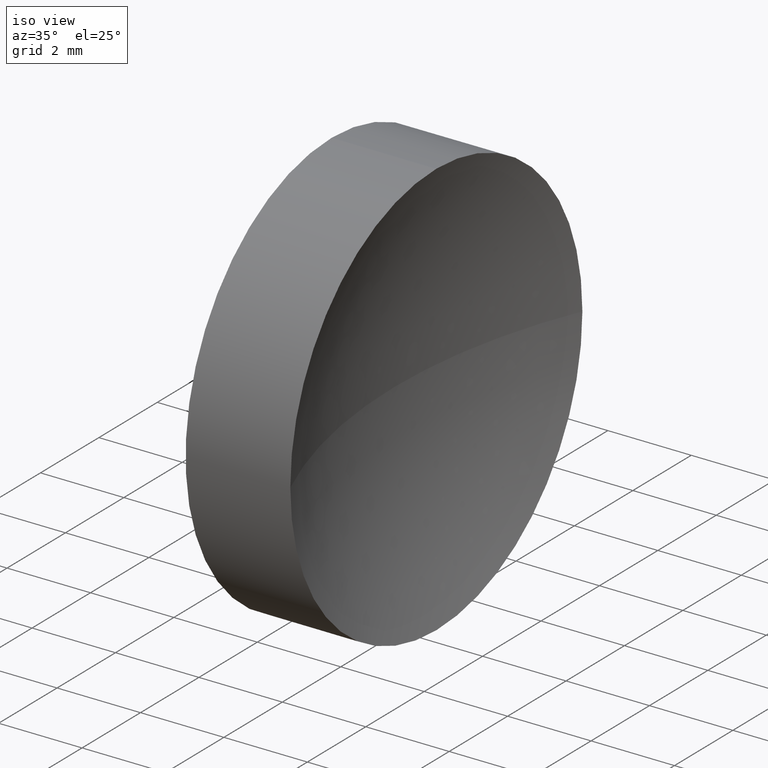
[diagram: clean part render]
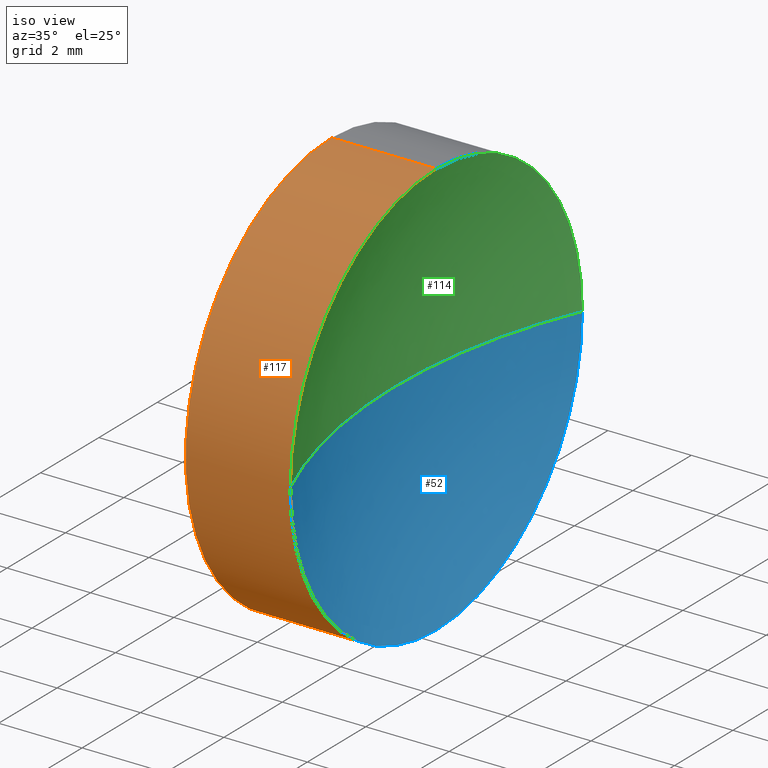
[diagram: same view with three faces highlighted in distinct colors, each labeled with its STEP entity id]
A machine part, iso view with three faces highlighted in distinct colors.
Their STEP definitions:

[orange] entity #117 — the highlighted cylindrical surface (partial cylindrical patch) has radius 5 mm, axis along (-1, -0, -0).
#7 = DIRECTION ( 'NONE',  ( -1.000000000000000000, -0.0000000000000000000, -0.0000000000000000000 ) ) ;
#10 = DIRECTION ( 'NONE',  ( -1.000000000000000000, -0.0000000000000000000, -0.0000000000000000000 ) ) ;
#11 = VERTEX_POINT ( 'NONE', #87 ) ;
#16 = DIRECTION ( 'NONE',  ( -1.000000000000000000, -0.0000000000000000000, -0.0000000000000000000 ) ) ;
#17 = CARTESIAN_POINT ( 'NONE',  ( 46.82958549791030100, 26.08904114919495900, 0.0000000000000000000 ) ) ;
#18 = EDGE_CURVE ( 'NONE', #118, #54, #30, .T. ) ;
#19 = DIRECTION ( 'NONE',  ( 0.0000000000000000000, 0.0000000000000000000, 1.000000000000000000 ) ) ;
#23 = VECTOR ( 'NONE', #39, 1000.000000000000000 ) ;
#28 = DIRECTION ( 'NONE',  ( -1.000000000000000000, -0.0000000000000000000, -0.0000000000000000000 ) ) ;
#30 = LINE ( 'NONE', #102, #23 ) ;
#34 = CIRCLE ( 'NONE', #124, 5.000000000000000900 ) ;
#35 = VERTEX_POINT ( 'NONE', #134 ) ;
#36 = AXIS2_PLACEMENT_3D ( 'NONE', #17, #92, #165 ) ;
#38 = AXIS2_PLACEMENT_3D ( 'NONE', #153, #10, #65 ) ;
#39 = DIRECTION ( 'NONE',  ( -1.000000000000000000, -0.0000000000000000000, -0.0000000000000000000 ) ) ;
#40 = CARTESIAN_POINT ( 'NONE',  ( 42.44986111413682300, 26.08904114919495900, 5.000000000000000900 ) ) ;
#42 = FACE_OUTER_BOUND ( 'NONE', #88, .T. ) ;
#44 = CARTESIAN_POINT ( 'NONE',  ( 46.82958549791030100, 26.08904114919495900, -5.000000000000000900 ) ) ;
#53 = ORIENTED_EDGE ( 'NONE', *, *, #84, .T. ) ;
#54 = VERTEX_POINT ( 'NONE', #77 ) ;
#55 = EDGE_CURVE ( 'NONE', #11, #35, #57, .T. ) ;
#57 = LINE ( 'NONE', #40, #156 ) ;
#58 = ORIENTED_EDGE ( 'NONE', *, *, #97, .T. ) ;
#64 = ORIENTED_EDGE ( 'NONE', *, *, #55, .T. ) ;
#65 = DIRECTION ( 'NONE',  ( 0.0000000000000000000, 0.0000000000000000000, 1.000000000000000000 ) ) ;
#77 = CARTESIAN_POINT ( 'NONE',  ( 44.31958549791029600, 26.08904114919495900, -5.000000000000000900 ) ) ;
#84 = EDGE_CURVE ( 'NONE', #177, #11, #34, .T. ) ;
#87 = CARTESIAN_POINT ( 'NONE',  ( 46.82958549791030100, 26.08904114919495900, 5.000000000000000900 ) ) ;
#88 = EDGE_LOOP ( 'NONE', ( #99, #58, #53, #64, #111 ) ) ;
#89 = CARTESIAN_POINT ( 'NONE',  ( 44.31958549791029600, 26.08904114919495900, 0.0000000000000000000 ) ) ;
#90 = EDGE_CURVE ( 'NONE', #54, #35, #172, .T. ) ;
#92 = DIRECTION ( 'NONE',  ( -1.000000000000000000, -0.0000000000000000000, -0.0000000000000000000 ) ) ;
#97 = EDGE_CURVE ( 'NONE', #118, #177, #135, .T. ) ;
#99 = ORIENTED_EDGE ( 'NONE', *, *, #18, .F. ) ;
#102 = CARTESIAN_POINT ( 'NONE',  ( 42.44986111413682300, 26.08904114919495900, -5.000000000000000900 ) ) ;
#106 = CARTESIAN_POINT ( 'NONE',  ( 46.82958549791030100, 26.08904114919495900, 0.0000000000000000000 ) ) ;
#107 = DIRECTION ( 'NONE',  ( 0.0000000000000000000, 0.0000000000000000000, 1.000000000000000000 ) ) ;
#111 = ORIENTED_EDGE ( 'NONE', *, *, #90, .F. ) ;
#117 = ADVANCED_FACE ( 'NONE', ( #42 ), #175, .T. ) ;
#118 = VERTEX_POINT ( 'NONE', #44 ) ;
#124 = AXIS2_PLACEMENT_3D ( 'NONE', #106, #7, #19 ) ;
#131 = AXIS2_PLACEMENT_3D ( 'NONE', #89, #16, #107 ) ;
#134 = CARTESIAN_POINT ( 'NONE',  ( 44.31958549791029600, 26.08904114919495900, 5.000000000000000900 ) ) ;
#135 = CIRCLE ( 'NONE', #36, 5.000000000000000900 ) ;
#152 = CARTESIAN_POINT ( 'NONE',  ( 46.82958549791030100, 21.08904114919496200, 0.0000000000000000000 ) ) ;
#153 = CARTESIAN_POINT ( 'NONE',  ( 42.44986111413682300, 26.08904114919495900, 0.0000000000000000000 ) ) ;
#156 = VECTOR ( 'NONE', #28, 1000.000000000000000 ) ;
#165 = DIRECTION ( 'NONE',  ( 0.0000000000000000000, 0.0000000000000000000, 1.000000000000000000 ) ) ;
#172 = CIRCLE ( 'NONE', #131, 5.000000000000000900 ) ;
#175 = CYLINDRICAL_SURFACE ( 'NONE', #38, 5.000000000000000900 ) ;
#177 = VERTEX_POINT ( 'NONE', #152 ) ;

[blue] entity #52 — the highlighted spherical surface has radius 12.8812 mm.
#2 = CARTESIAN_POINT ( 'NONE',  ( 45.81958524454067600, 26.08904114919495900, 0.0000000000000000000 ) ) ;
#4 = EDGE_CURVE ( 'NONE', #20, #98, #167, .T. ) ;
#6 = CARTESIAN_POINT ( 'NONE',  ( 46.82958549791030100, 31.08904114919495500, 6.123233995736764300E-016 ) ) ;
#8 = CARTESIAN_POINT ( 'NONE',  ( 58.70081989027306700, 26.08904114919495900, 0.0000000000000000000 ) ) ;
#13 = ORIENTED_EDGE ( 'NONE', *, *, #95, .F. ) ;
#15 = DIRECTION ( 'NONE',  ( 0.0000000000000000000, -1.000000000000000000, -1.224646799147353500E-016 ) ) ;
#17 = CARTESIAN_POINT ( 'NONE',  ( 46.82958549791030100, 26.08904114919495900, 0.0000000000000000000 ) ) ;
#20 = VERTEX_POINT ( 'NONE', #6 ) ;
#36 = AXIS2_PLACEMENT_3D ( 'NONE', #17, #92, #165 ) ;
#43 = ORIENTED_EDGE ( 'NONE', *, *, #4, .T. ) ;
#44 = CARTESIAN_POINT ( 'NONE',  ( 46.82958549791030100, 26.08904114919495900, -5.000000000000000900 ) ) ;
#50 = CIRCLE ( 'NONE', #130, 12.88123464573238900 ) ;
#52 = ADVANCED_FACE ( 'NONE', ( #151 ), #70, .F. ) ;
#61 = CARTESIAN_POINT ( 'NONE',  ( 58.70081989027306700, 26.08904114919495900, 0.0000000000000000000 ) ) ;
#70 = SPHERICAL_SURFACE ( 'NONE', #185, 12.88123464573238900 ) ;
#92 = DIRECTION ( 'NONE',  ( -1.000000000000000000, -0.0000000000000000000, -0.0000000000000000000 ) ) ;
#95 = EDGE_CURVE ( 'NONE', #177, #98, #50, .T. ) ;
#97 = EDGE_CURVE ( 'NONE', #118, #177, #135, .T. ) ;
#98 = VERTEX_POINT ( 'NONE', #2 ) ;
#100 = EDGE_CURVE ( 'NONE', #20, #118, #161, .T. ) ;
#113 = AXIS2_PLACEMENT_3D ( 'NONE', #61, #132, #15 ) ;
#118 = VERTEX_POINT ( 'NONE', #44 ) ;
#121 = AXIS2_PLACEMENT_3D ( 'NONE', #150, #178, #179 ) ;
#122 = DIRECTION ( 'NONE',  ( -1.000000000000000000, 0.0000000000000000000, 0.0000000000000000000 ) ) ;
#129 = EDGE_LOOP ( 'NONE', ( #142, #43, #13, #148 ) ) ;
#130 = AXIS2_PLACEMENT_3D ( 'NONE', #8, #182, #122 ) ;
#132 = DIRECTION ( 'NONE',  ( 0.0000000000000000000, -1.224646799147353200E-016, 1.000000000000000000 ) ) ;
#135 = CIRCLE ( 'NONE', #36, 5.000000000000000900 ) ;
#142 = ORIENTED_EDGE ( 'NONE', *, *, #100, .F. ) ;
#145 = CARTESIAN_POINT ( 'NONE',  ( 58.70081989027306700, 26.08904114919495900, 0.0000000000000000000 ) ) ;
#148 = ORIENTED_EDGE ( 'NONE', *, *, #97, .F. ) ;
#149 = DIRECTION ( 'NONE',  ( 0.0000000000000000000, -1.000000000000000000, 0.0000000000000000000 ) ) ;
#150 = CARTESIAN_POINT ( 'NONE',  ( 46.82958549791030100, 26.08904114919495900, 0.0000000000000000000 ) ) ;
#151 = FACE_OUTER_BOUND ( 'NONE', #129, .T. ) ;
#152 = CARTESIAN_POINT ( 'NONE',  ( 46.82958549791030100, 21.08904114919496200, 0.0000000000000000000 ) ) ;
#159 = DIRECTION ( 'NONE',  ( 0.0000000000000000000, 0.0000000000000000000, 1.000000000000000000 ) ) ;
#161 = CIRCLE ( 'NONE', #121, 5.000000000000000900 ) ;
#165 = DIRECTION ( 'NONE',  ( 0.0000000000000000000, 0.0000000000000000000, 1.000000000000000000 ) ) ;
#167 = CIRCLE ( 'NONE', #113, 12.88123464573238900 ) ;
#177 = VERTEX_POINT ( 'NONE', #152 ) ;
#178 = DIRECTION ( 'NONE',  ( -1.000000000000000000, -0.0000000000000000000, -0.0000000000000000000 ) ) ;
#179 = DIRECTION ( 'NONE',  ( 0.0000000000000000000, 0.0000000000000000000, 1.000000000000000000 ) ) ;
#182 = DIRECTION ( 'NONE',  ( 0.0000000000000000000, 0.0000000000000000000, -1.000000000000000000 ) ) ;
#185 = AXIS2_PLACEMENT_3D ( 'NONE', #145, #159, #149 ) ;

[green] entity #114 — the highlighted spherical surface has radius 12.8812 mm.
#1 = EDGE_CURVE ( 'NONE', #11, #20, #21, .T. ) ;
#2 = CARTESIAN_POINT ( 'NONE',  ( 45.81958524454067600, 26.08904114919495900, 0.0000000000000000000 ) ) ;
#4 = EDGE_CURVE ( 'NONE', #20, #98, #167, .T. ) ;
#5 = ORIENTED_EDGE ( 'NONE', *, *, #84, .F. ) ;
#6 = CARTESIAN_POINT ( 'NONE',  ( 46.82958549791030100, 31.08904114919495500, 6.123233995736764300E-016 ) ) ;
#7 = DIRECTION ( 'NONE',  ( -1.000000000000000000, -0.0000000000000000000, -0.0000000000000000000 ) ) ;
#8 = CARTESIAN_POINT ( 'NONE',  ( 58.70081989027306700, 26.08904114919495900, 0.0000000000000000000 ) ) ;
#11 = VERTEX_POINT ( 'NONE', #87 ) ;
#15 = DIRECTION ( 'NONE',  ( 0.0000000000000000000, -1.000000000000000000, -1.224646799147353500E-016 ) ) ;
#19 = DIRECTION ( 'NONE',  ( 0.0000000000000000000, 0.0000000000000000000, 1.000000000000000000 ) ) ;
#20 = VERTEX_POINT ( 'NONE', #6 ) ;
#21 = CIRCLE ( 'NONE', #109, 5.000000000000000900 ) ;
#29 = AXIS2_PLACEMENT_3D ( 'NONE', #137, #48, #81 ) ;
#34 = CIRCLE ( 'NONE', #124, 5.000000000000000900 ) ;
#41 = DIRECTION ( 'NONE',  ( 0.0000000000000000000, 0.0000000000000000000, 1.000000000000000000 ) ) ;
#48 = DIRECTION ( 'NONE',  ( 0.0000000000000000000, 0.0000000000000000000, 1.000000000000000000 ) ) ;
#50 = CIRCLE ( 'NONE', #130, 12.88123464573238900 ) ;
#61 = CARTESIAN_POINT ( 'NONE',  ( 58.70081989027306700, 26.08904114919495900, 0.0000000000000000000 ) ) ;
#81 = DIRECTION ( 'NONE',  ( 0.0000000000000000000, -1.000000000000000000, 0.0000000000000000000 ) ) ;
#82 = SPHERICAL_SURFACE ( 'NONE', #29, 12.88123464573238900 ) ;
#84 = EDGE_CURVE ( 'NONE', #177, #11, #34, .T. ) ;
#87 = CARTESIAN_POINT ( 'NONE',  ( 46.82958549791030100, 26.08904114919495900, 5.000000000000000900 ) ) ;
#95 = EDGE_CURVE ( 'NONE', #177, #98, #50, .T. ) ;
#98 = VERTEX_POINT ( 'NONE', #2 ) ;
#105 = CARTESIAN_POINT ( 'NONE',  ( 46.82958549791030100, 26.08904114919495900, 0.0000000000000000000 ) ) ;
#106 = CARTESIAN_POINT ( 'NONE',  ( 46.82958549791030100, 26.08904114919495900, 0.0000000000000000000 ) ) ;
#109 = AXIS2_PLACEMENT_3D ( 'NONE', #105, #176, #41 ) ;
#113 = AXIS2_PLACEMENT_3D ( 'NONE', #61, #132, #15 ) ;
#114 = ADVANCED_FACE ( 'NONE', ( #128 ), #82, .F. ) ;
#120 = ORIENTED_EDGE ( 'NONE', *, *, #4, .F. ) ;
#122 = DIRECTION ( 'NONE',  ( -1.000000000000000000, 0.0000000000000000000, 0.0000000000000000000 ) ) ;
#124 = AXIS2_PLACEMENT_3D ( 'NONE', #106, #7, #19 ) ;
#128 = FACE_OUTER_BOUND ( 'NONE', #133, .T. ) ;
#130 = AXIS2_PLACEMENT_3D ( 'NONE', #8, #182, #122 ) ;
#132 = DIRECTION ( 'NONE',  ( 0.0000000000000000000, -1.224646799147353200E-016, 1.000000000000000000 ) ) ;
#133 = EDGE_LOOP ( 'NONE', ( #120, #144, #5, #141 ) ) ;
#137 = CARTESIAN_POINT ( 'NONE',  ( 58.70081989027306700, 26.08904114919495900, 0.0000000000000000000 ) ) ;
#141 = ORIENTED_EDGE ( 'NONE', *, *, #95, .T. ) ;
#144 = ORIENTED_EDGE ( 'NONE', *, *, #1, .F. ) ;
#152 = CARTESIAN_POINT ( 'NONE',  ( 46.82958549791030100, 21.08904114919496200, 0.0000000000000000000 ) ) ;
#167 = CIRCLE ( 'NONE', #113, 12.88123464573238900 ) ;
#176 = DIRECTION ( 'NONE',  ( -1.000000000000000000, -0.0000000000000000000, -0.0000000000000000000 ) ) ;
#177 = VERTEX_POINT ( 'NONE', #152 ) ;
#182 = DIRECTION ( 'NONE',  ( 0.0000000000000000000, 0.0000000000000000000, -1.000000000000000000 ) ) ;